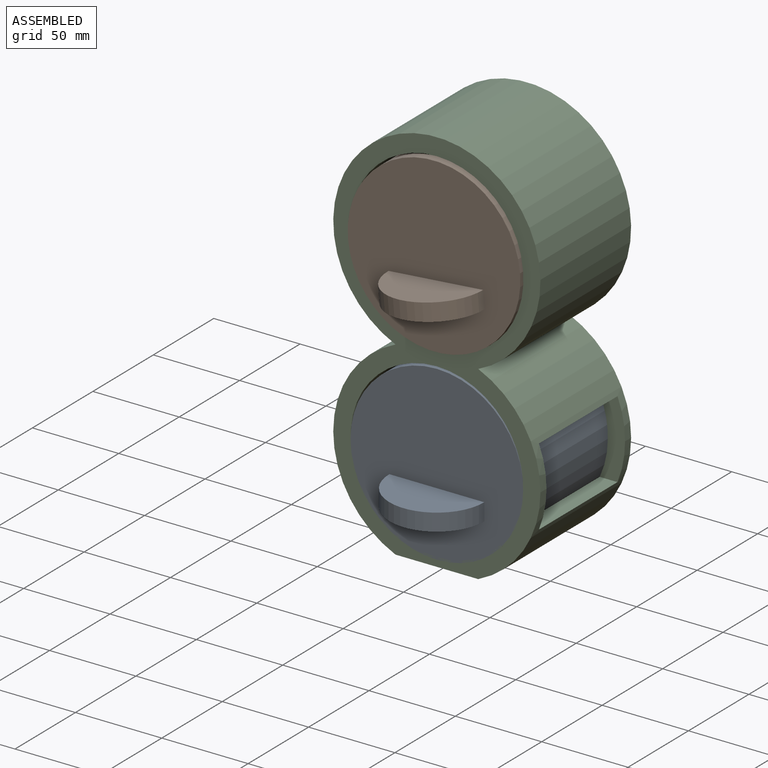
[diagram: assembled view]
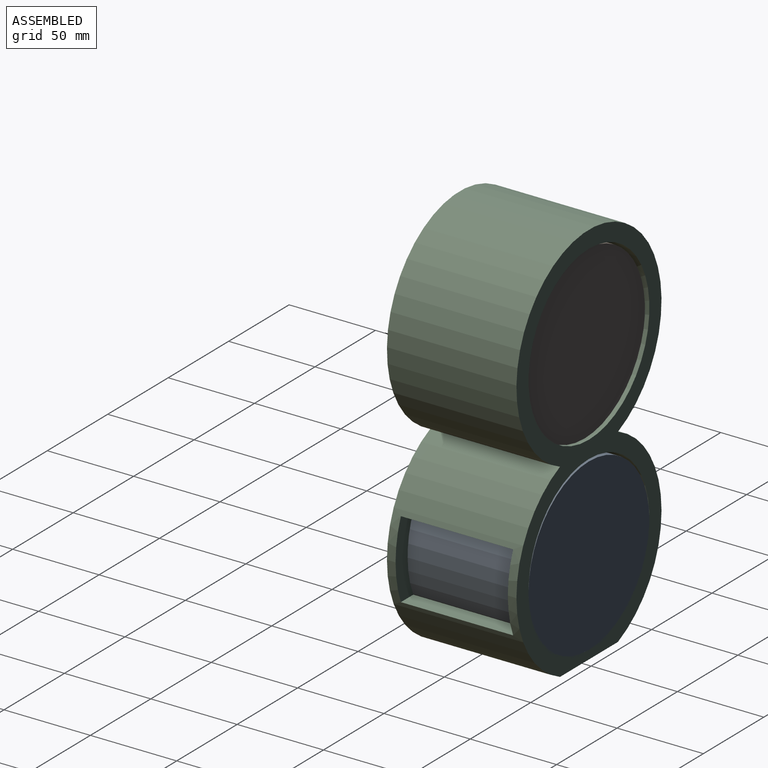
[diagram: assembled view, second angle]
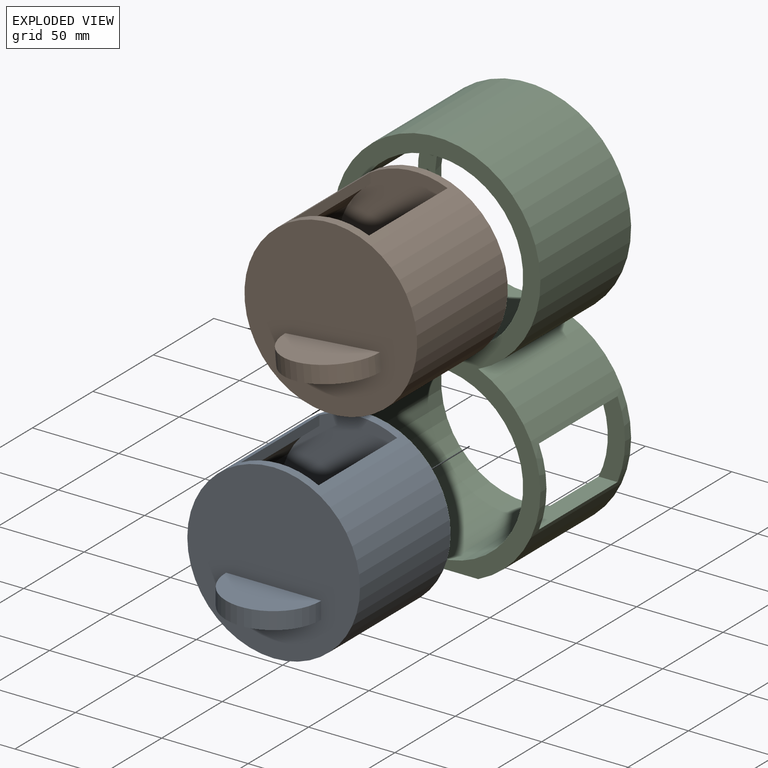
[diagram: exploded view]
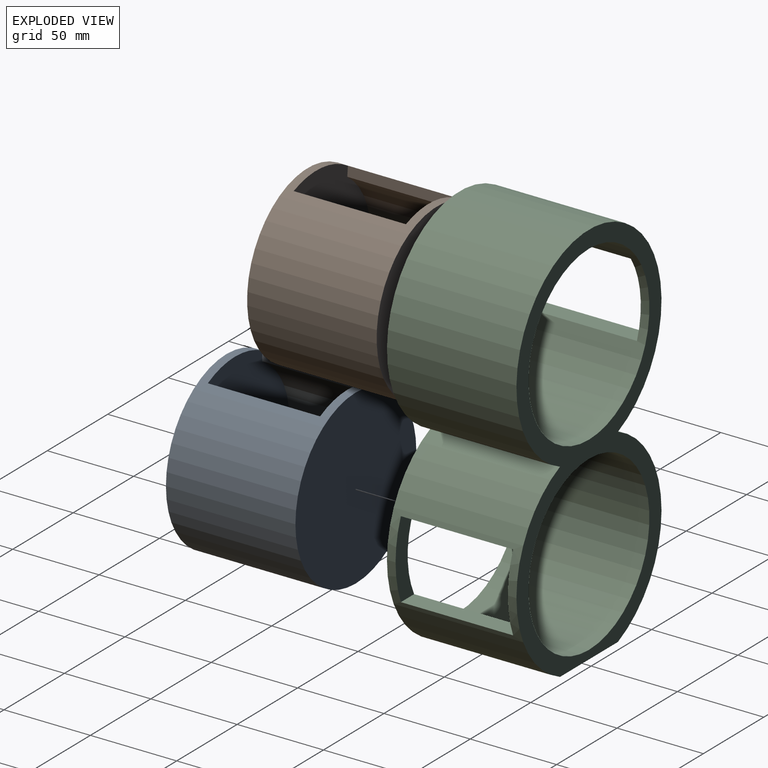
[diagram: exploded view, second angle]
ASSEMBLY  parts=3 mates=2
PART A: 11 faces, bbox 100x102.5x100 mm
  f0: plane 95x90mm, normal (0,1,0), area 6596.2mm2, adj f1,f3,f4,f5
  f1: cylinder r=45mm len=90mm, axis (0,-1,0), area 15315.3mm2, adj f0,f2,f3,f4
  f2: plane 95x90mm, normal (0,-1,0), area 6596.2mm2, adj f1,f3,f4,f5
  f3: plane 65x5.68mm, normal (1,0,0), area 369.2mm2, adj f0,f1,f2,f5
  f4: plane 65x5.68mm, normal (-1,0,0), area 369.2mm2, adj f0,f1,f2,f5
  f5: cylinder r=50mm len=100mm, axis (0,1,0), area 20528mm2, adj f0,f2,f3,f4,f6,f7
  f6: plane 100x100mm, normal (0,-1,0), area 7304mm2, adj f5,f8,f9,f10
  f7: plane 100x100mm, normal (0,1,0), area 7854mm2, adj f5
  f8: plane 55x27.5mm, normal (0,0,1), area 1187.9mm2, adj f6,f10
  f9: plane 55x27.5mm, normal (0,0,-1), area 1187.9mm2, adj f6,f10
  f10: cylinder r=27.5mm len=55mm, axis (0,0,1), area 863.9mm2, adj f6,f8,f9
PART B: same geometry as A
PART C: 16 faces, bbox 120x75x225 mm
  f0: cylinder r=60mm len=110mm, axis (0,1,0), area 7438.6mm2, adj f1,f3,f6,f7,f8,f9,f10,f15
  f1: plane 225x120mm, normal (0,1,0), area 6427.8mm2, adj f0,f2,f3,f4,f5,f15
  f2: cylinder r=50mm len=100mm, axis (0,1,0), area 20507.2mm2, adj f1,f6,f11,f12,f13,f14
  f3: cylinder r=60mm len=120mm, axis (0,1,0), area 21563mm2, adj f0,f1,f4,f6,f11,f12,f13,f14
  f4: cylinder r=60mm len=110mm, axis (0,1,0), area 10436.9mm2, adj f1,f3,f6,f15
  f5: cylinder r=50mm len=100mm, axis (0,1,0), area 20528mm2, adj f1,f6,f7,f8,f9,f10
  f6: plane 225x120mm, normal (0,-1,0), area 6427.8mm2, adj f0,f2,f3,f4,f5,f15
  f7: plane 45x15.35mm, normal (0,1,0), area 463.7mm2, adj f0,f5,f8,f10
  f8: plane 65x10.97mm, normal (0,0,1), area 713.1mm2, adj f0,f5,f7,f9
  f9: plane 45x15.35mm, normal (0,-1,0), area 463.7mm2, adj f0,f5,f8,f10
  f10: plane 65x10.97mm, normal (0,0,-1), area 713.1mm2, adj f0,f5,f7,f9
  f11: plane 45x18.24mm, normal (0,1,0), area 466.3mm2, adj f2,f3,f12,f14
  f12: plane 65x10.55mm, normal (0,0,1), area 686mm2, adj f2,f3,f11,f13
  f13: plane 45x18.24mm, normal (0,-1,0), area 466.3mm2, adj f2,f3,f12,f14
  f14: plane 65x11.57mm, normal (0,0,-1), area 752mm2, adj f2,f3,f11,f13
  f15: plane 75x47.96mm, normal (0,0,-1), area 3596.9mm2, adj f0,f1,f4,f6
PLACE A rot(axis=(0,1,0),180deg) t=(1.77,-70,35.04)mm
PLACE B rot(axis=(0,1,0),175.1deg) t=(1.89,-72.5,145.05)mm
PLACE C t=(1.77,0,36.36)mm fixed
MATE cylindrical B.f6 <-> C.f2  axis (0,-1,0) through (1.77,-77.5,146.36)mm
MATE cylindrical A.f6 <-> C.f5  axis (0,-1,0) through (1.77,-75,36.36)mm
